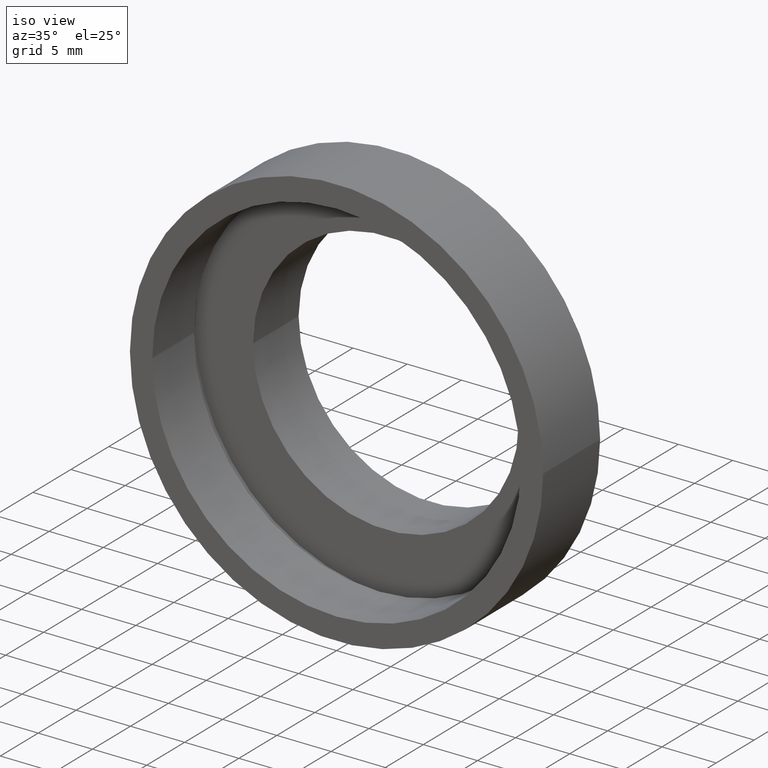
[diagram: clean part render]
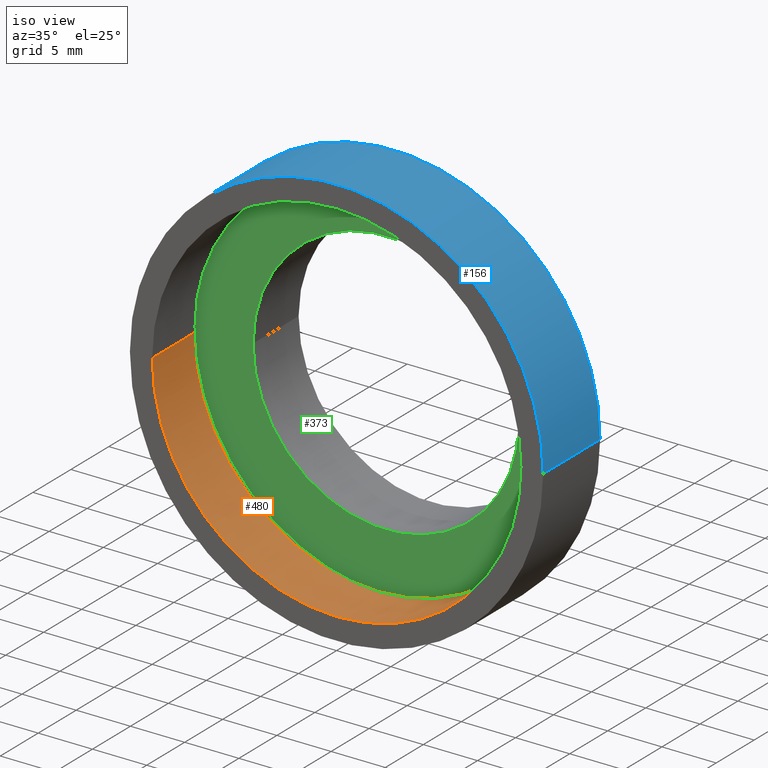
[diagram: same view with three faces highlighted in distinct colors, each labeled with its STEP entity id]
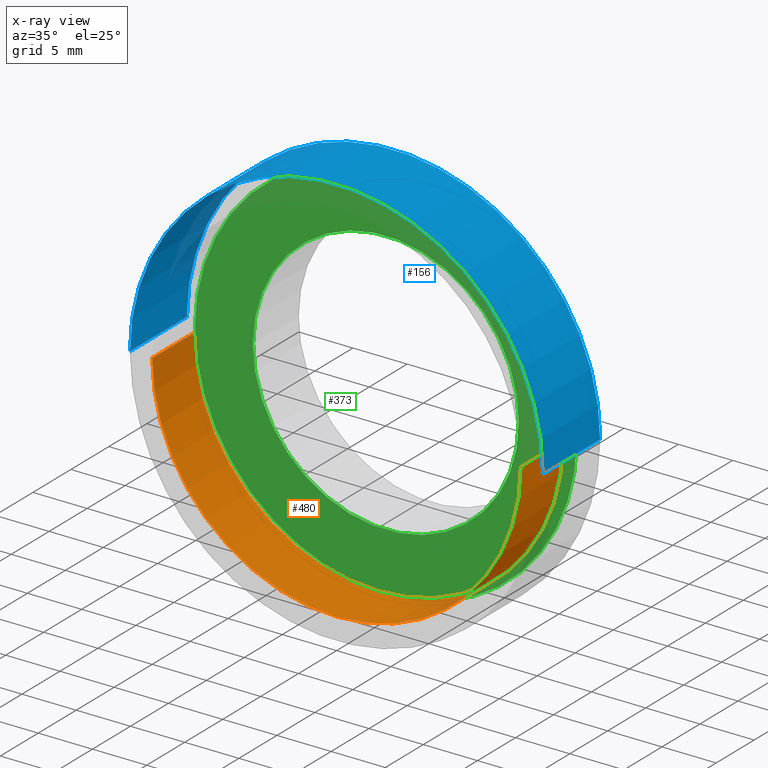
[diagram: x-ray of the same camera — body ghosted, the three highlighted faces saturated]
A machine part, iso view with three faces highlighted in distinct colors.
The next image is the same camera in x-ray (body ghosted, the three faces saturated) — at least one of them is partly hidden behind the body in this view.
Their STEP definitions:

[orange] entity #480 — the highlighted cylindrical surface (partial cylindrical patch) has radius 17 mm, axis along (-0, 1, -0).
#52 = ORIENTED_EDGE ( 'NONE', *, *, #565, .T. ) ;
#71 = CIRCLE ( 'NONE', #343, 17.00000000000000400 ) ;
#101 = VERTEX_POINT ( 'NONE', #323 ) ;
#112 = DIRECTION ( 'NONE',  ( -1.000000000000000000, -1.224646799147351500E-016, 0.0000000000000000000 ) ) ;
#121 = CARTESIAN_POINT ( 'NONE',  ( 1.394385078907593000E-015, 5.499999999999998200, 0.0000000000000000000 ) ) ;
#123 = DIRECTION ( 'NONE',  ( -1.224646799147351000E-016, 1.000000000000000000, -0.0000000000000000000 ) ) ;
#127 = CARTESIAN_POINT ( 'NONE',  ( -16.99999999999999600, -5.551346510504111700E-015, 0.0000000000000000000 ) ) ;
#129 = CARTESIAN_POINT ( 'NONE',  ( 17.00000000000000400, -1.387547393403117700E-015, 2.081899558550500700E-015 ) ) ;
#174 = DIRECTION ( 'NONE',  ( -1.224646799147351000E-016, 1.000000000000000000, -0.0000000000000000000 ) ) ;
#180 = ORIENTED_EDGE ( 'NONE', *, *, #601, .F. ) ;
#200 = DIRECTION ( 'NONE',  ( -1.000000000000000000, -1.020425574104004000E-016, 0.0000000000000000000 ) ) ;
#208 = CARTESIAN_POINT ( 'NONE',  ( 17.00000000000000400, 5.500000000000000000, 2.081899558550500700E-015 ) ) ;
#210 = LINE ( 'NONE', #308, #262 ) ;
#221 = VERTEX_POINT ( 'NONE', #127 ) ;
#262 = VECTOR ( 'NONE', #393, 1000.000000000000000 ) ;
#299 = AXIS2_PLACEMENT_3D ( 'NONE', #409, #174, #402 ) ;
#308 = CARTESIAN_POINT ( 'NONE',  ( 17.00000000000000000, 16.88601823708208000, 2.081899558550500300E-015 ) ) ;
#323 = CARTESIAN_POINT ( 'NONE',  ( -17.00000000000000400, 5.499999999999996400, 0.0000000000000000000 ) ) ;
#330 = AXIS2_PLACEMENT_3D ( 'NONE', #341, #454, #112 ) ;
#341 = CARTESIAN_POINT ( 'NONE',  ( 2.067940818438636500E-015, -3.469446951953614200E-015, 0.0000000000000000000 ) ) ;
#342 = VECTOR ( 'NONE', #550, 1000.000000000000000 ) ;
#343 = AXIS2_PLACEMENT_3D ( 'NONE', #121, #123, #200 ) ;
#360 = EDGE_LOOP ( 'NONE', ( #518, #559, #52, #180 ) ) ;
#393 = DIRECTION ( 'NONE',  ( -1.224646799147351000E-016, 1.000000000000000000, -0.0000000000000000000 ) ) ;
#402 = DIRECTION ( 'NONE',  ( -1.000000000000000000, -2.040851148208008200E-016, 0.0000000000000000000 ) ) ;
#403 = CARTESIAN_POINT ( 'NONE',  ( -17.00000000000000000, 16.88601823708207300, 0.0000000000000000000 ) ) ;
#409 = CARTESIAN_POINT ( 'NONE',  ( 0.0000000000000000000, 16.88601823708207700, 0.0000000000000000000 ) ) ;
#454 = DIRECTION ( 'NONE',  ( -1.224646799147351000E-016, 1.000000000000000000, -0.0000000000000000000 ) ) ;
#480 = ADVANCED_FACE ( 'NONE', ( #562 ), #510, .F. ) ;
#510 = CYLINDRICAL_SURFACE ( 'NONE', #299, 17.00000000000000000 ) ;
#518 = ORIENTED_EDGE ( 'NONE', *, *, #522, .F. ) ;
#522 = EDGE_CURVE ( 'NONE', #597, #221, #600, .T. ) ;
#547 = LINE ( 'NONE', #403, #342 ) ;
#550 = DIRECTION ( 'NONE',  ( -1.224646799147351000E-016, 1.000000000000000000, -0.0000000000000000000 ) ) ;
#559 = ORIENTED_EDGE ( 'NONE', *, *, #582, .T. ) ;
#562 = FACE_OUTER_BOUND ( 'NONE', #360, .T. ) ;
#565 = EDGE_CURVE ( 'NONE', #587, #101, #71, .T. ) ;
#582 = EDGE_CURVE ( 'NONE', #597, #587, #210, .T. ) ;
#587 = VERTEX_POINT ( 'NONE', #208 ) ;
#597 = VERTEX_POINT ( 'NONE', #129 ) ;
#600 = CIRCLE ( 'NONE', #330, 17.00000000000000000 ) ;
#601 = EDGE_CURVE ( 'NONE', #221, #101, #547, .T. ) ;

[blue] entity #156 — the highlighted cylindrical surface (partial cylindrical patch) has radius 19.05 mm, axis along (-0, 1, -0).
#20 = DIRECTION ( 'NONE',  ( -1.000000000000000000, -1.365923996832131600E-016, 0.0000000000000000000 ) ) ;
#27 = VERTEX_POINT ( 'NONE', #352 ) ;
#40 = EDGE_CURVE ( 'NONE', #220, #433, #277, .T. ) ;
#42 = CARTESIAN_POINT ( 'NONE',  ( -19.04999999999999700, 16.88601823708207300, 0.0000000000000000000 ) ) ;
#59 = DIRECTION ( 'NONE',  ( -1.224646799147351000E-016, 1.000000000000000000, -0.0000000000000000000 ) ) ;
#76 = CARTESIAN_POINT ( 'NONE',  ( 2.067940818438636500E-015, -3.469446951953614200E-015, 0.0000000000000000000 ) ) ;
#80 = EDGE_CURVE ( 'NONE', #220, #27, #408, .T. ) ;
#102 = ORIENTED_EDGE ( 'NONE', *, *, #40, .T. ) ;
#133 = CARTESIAN_POINT ( 'NONE',  ( 19.05000000000000100, 7.500000000000000900, 2.332952152375707600E-015 ) ) ;
#156 = ADVANCED_FACE ( 'NONE', ( #564 ), #458, .T. ) ;
#165 = CARTESIAN_POINT ( 'NONE',  ( -19.04999999999999400, -5.802399104329317500E-015, 0.0000000000000000000 ) ) ;
#215 = AXIS2_PLACEMENT_3D ( 'NONE', #76, #546, #545 ) ;
#220 = VERTEX_POINT ( 'NONE', #165 ) ;
#239 = VECTOR ( 'NONE', #248, 1000.000000000000000 ) ;
#245 = DIRECTION ( 'NONE',  ( -1.000000000000000000, -1.821231995776175700E-016, 0.0000000000000000000 ) ) ;
#248 = DIRECTION ( 'NONE',  ( -1.224646799147351000E-016, 1.000000000000000000, -0.0000000000000000000 ) ) ;
#249 = DIRECTION ( 'NONE',  ( -1.224646799147351000E-016, 1.000000000000000000, -0.0000000000000000000 ) ) ;
#251 = CARTESIAN_POINT ( 'NONE',  ( 0.0000000000000000000, 16.88601823708207700, 0.0000000000000000000 ) ) ;
#260 = ORIENTED_EDGE ( 'NONE', *, *, #536, .T. ) ;
#275 = CIRCLE ( 'NONE', #507, 19.05000000000000100 ) ;
#277 = CIRCLE ( 'NONE', #215, 19.04999999999999700 ) ;
#304 = DIRECTION ( 'NONE',  ( -1.224646799147351000E-016, 1.000000000000000000, -0.0000000000000000000 ) ) ;
#320 = EDGE_LOOP ( 'NONE', ( #102, #260, #336, #369 ) ) ;
#336 = ORIENTED_EDGE ( 'NONE', *, *, #605, .F. ) ;
#352 = CARTESIAN_POINT ( 'NONE',  ( -19.05000000000000100, 7.499999999999995600, 0.0000000000000000000 ) ) ;
#369 = ORIENTED_EDGE ( 'NONE', *, *, #80, .F. ) ;
#380 = VECTOR ( 'NONE', #59, 1000.000000000000000 ) ;
#383 = VERTEX_POINT ( 'NONE', #133 ) ;
#408 = LINE ( 'NONE', #42, #239 ) ;
#433 = VERTEX_POINT ( 'NONE', #537 ) ;
#450 = CARTESIAN_POINT ( 'NONE',  ( 1.149455719078122700E-015, 7.499999999999998200, 0.0000000000000000000 ) ) ;
#458 = CYLINDRICAL_SURFACE ( 'NONE', #494, 19.04999999999999700 ) ;
#481 = LINE ( 'NONE', #590, #380 ) ;
#494 = AXIS2_PLACEMENT_3D ( 'NONE', #251, #249, #245 ) ;
#507 = AXIS2_PLACEMENT_3D ( 'NONE', #450, #304, #20 ) ;
#536 = EDGE_CURVE ( 'NONE', #433, #383, #481, .T. ) ;
#537 = CARTESIAN_POINT ( 'NONE',  ( 19.05000000000000100, -1.136494799577911100E-015, 2.332952152375707600E-015 ) ) ;
#545 = DIRECTION ( 'NONE',  ( -1.000000000000000000, -1.224646799147351000E-016, 0.0000000000000000000 ) ) ;
#546 = DIRECTION ( 'NONE',  ( -1.224646799147351000E-016, 1.000000000000000000, -0.0000000000000000000 ) ) ;
#564 = FACE_OUTER_BOUND ( 'NONE', #320, .T. ) ;
#590 = CARTESIAN_POINT ( 'NONE',  ( 19.04999999999999700, 16.88601823708208000, 2.332952152375707300E-015 ) ) ;
#605 = EDGE_CURVE ( 'NONE', #27, #383, #275, .T. ) ;

[green] entity #373 — the highlighted planar face has unit normal (-0, 1, 0).
#7 = PLANE ( 'NONE',  #538 ) ;
#30 = VERTEX_POINT ( 'NONE', #79 ) ;
#33 = VERTEX_POINT ( 'NONE', #34 ) ;
#34 = CARTESIAN_POINT ( 'NONE',  ( 12.25000000000000400, 6.499999999999999100, 1.500192328955508100E-015 ) ) ;
#62 = DIRECTION ( 'NONE',  ( -1.224646799147351000E-016, 1.000000000000000000, -0.0000000000000000000 ) ) ;
#63 = DIRECTION ( 'NONE',  ( -1.224646799147351000E-016, 1.000000000000000000, -0.0000000000000000000 ) ) ;
#75 = ORIENTED_EDGE ( 'NONE', *, *, #473, .T. ) ;
#79 = CARTESIAN_POINT ( 'NONE',  ( 17.60000000000000100, 6.499999999999999100, 2.155378366499341600E-015 ) ) ;
#81 = EDGE_CURVE ( 'NONE', #33, #374, #594, .T. ) ;
#89 = AXIS2_PLACEMENT_3D ( 'NONE', #225, #63, #422 ) ;
#137 = DIRECTION ( 'NONE',  ( -1.224646799147351000E-016, 1.000000000000000000, 0.0000000000000000000 ) ) ;
#142 = AXIS2_PLACEMENT_3D ( 'NONE', #442, #62, #161 ) ;
#145 = ORIENTED_EDGE ( 'NONE', *, *, #247, .F. ) ;
#161 = DIRECTION ( 'NONE',  ( -1.000000000000000000, -9.856383386231857600E-017, 0.0000000000000000000 ) ) ;
#163 = DIRECTION ( 'NONE',  ( -1.000000000000000000, -1.224646799147351000E-016, 0.0000000000000000000 ) ) ;
#214 = VERTEX_POINT ( 'NONE', #488 ) ;
#225 = CARTESIAN_POINT ( 'NONE',  ( 1.271920398992858000E-015, 6.499999999999997300, 0.0000000000000000000 ) ) ;
#227 = CARTESIAN_POINT ( 'NONE',  ( -12.24999999999999800, 6.499999999999995600, 0.0000000000000000000 ) ) ;
#238 = AXIS2_PLACEMENT_3D ( 'NONE', #548, #608, #592 ) ;
#243 = FACE_OUTER_BOUND ( 'NONE', #327, .T. ) ;
#247 = EDGE_CURVE ( 'NONE', #214, #30, #486, .T. ) ;
#270 = ORIENTED_EDGE ( 'NONE', *, *, #81, .T. ) ;
#295 = DIRECTION ( 'NONE',  ( -1.224646799147351000E-016, 1.000000000000000000, -0.0000000000000000000 ) ) ;
#327 = EDGE_LOOP ( 'NONE', ( #145, #602 ) ) ;
#337 = DIRECTION ( 'NONE',  ( -1.000000000000000000, -1.416100796715760900E-016, 0.0000000000000000000 ) ) ;
#353 = CARTESIAN_POINT ( 'NONE',  ( 1.271920398992858000E-015, 6.499999999999997300, 0.0000000000000000000 ) ) ;
#373 = ADVANCED_FACE ( 'NONE', ( #243, #511 ), #7, .F. ) ;
#374 = VERTEX_POINT ( 'NONE', #227 ) ;
#422 = DIRECTION ( 'NONE',  ( -1.000000000000000000, -1.416100796715760900E-016, 0.0000000000000000000 ) ) ;
#434 = AXIS2_PLACEMENT_3D ( 'NONE', #353, #295, #337 ) ;
#442 = CARTESIAN_POINT ( 'NONE',  ( 1.271920398992858000E-015, 6.499999999999997300, 0.0000000000000000000 ) ) ;
#473 = EDGE_CURVE ( 'NONE', #374, #33, #524, .T. ) ;
#476 = CIRCLE ( 'NONE', #238, 17.60000000000000100 ) ;
#486 = CIRCLE ( 'NONE', #142, 17.60000000000000100 ) ;
#488 = CARTESIAN_POINT ( 'NONE',  ( -17.60000000000000100, 6.499999999999995600, 0.0000000000000000000 ) ) ;
#509 = EDGE_CURVE ( 'NONE', #30, #214, #476, .T. ) ;
#511 = FACE_BOUND ( 'NONE', #552, .T. ) ;
#524 = CIRCLE ( 'NONE', #89, 12.25000000000000000 ) ;
#538 = AXIS2_PLACEMENT_3D ( 'NONE', #613, #137, #163 ) ;
#548 = CARTESIAN_POINT ( 'NONE',  ( 1.271920398992858000E-015, 6.499999999999997300, 0.0000000000000000000 ) ) ;
#552 = EDGE_LOOP ( 'NONE', ( #75, #270 ) ) ;
#592 = DIRECTION ( 'NONE',  ( -1.000000000000000000, -9.856383386231857600E-017, 0.0000000000000000000 ) ) ;
#594 = CIRCLE ( 'NONE', #434, 12.25000000000000000 ) ;
#602 = ORIENTED_EDGE ( 'NONE', *, *, #509, .F. ) ;
#608 = DIRECTION ( 'NONE',  ( -1.224646799147351000E-016, 1.000000000000000000, -0.0000000000000000000 ) ) ;
#613 = CARTESIAN_POINT ( 'NONE',  ( 12.25000000000000200, 6.499999999999999100, 0.0000000000000000000 ) ) ;